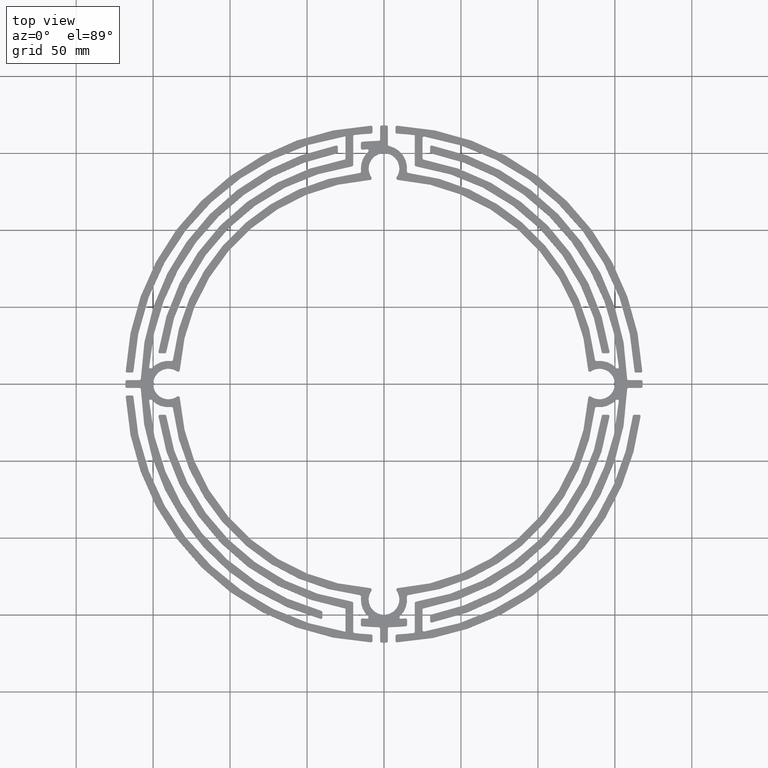
[diagram: clean part render]
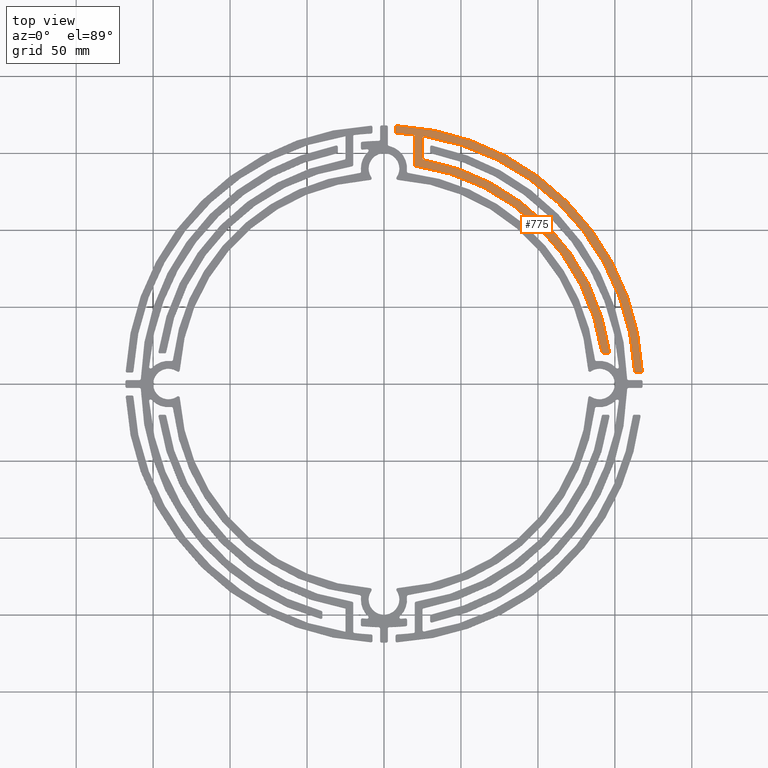
[diagram: same view with one face highlighted and labeled with its STEP entity id]
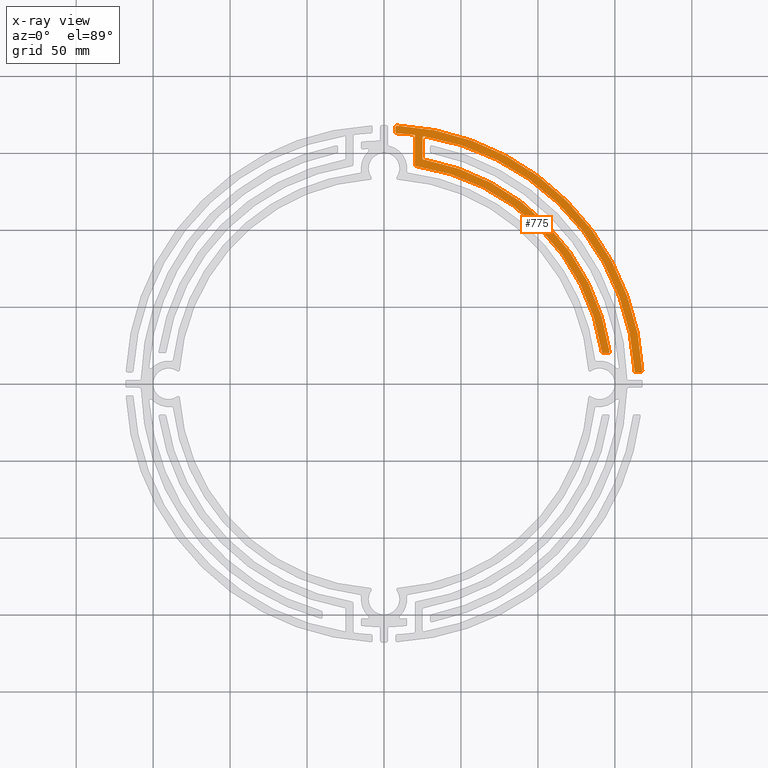
[diagram: x-ray of the same camera — body ghosted, the highlighted face saturated]
A machine part, top view. The second image highlights one B-rep face of the part: STEP entity #775.
The next image is the same camera in x-ray: the body ghosted, the highlighted face saturated — about 0% of this face is hidden behind the body in this view.
In plain terms, the highlighted planar face has unit normal (0, 0, 1).
Its self-contained STEP definition (entity closure, byte-faithful):
#2 = VERTEX_POINT ( 'NONE', #805 ) ;
#37 = VERTEX_POINT ( 'NONE', #840 ) ;
#97 = VERTEX_POINT ( 'NONE', #900 ) ;
#120 = VERTEX_POINT ( 'NONE', #923 ) ;
#129 = VERTEX_POINT ( 'NONE', #932 ) ;
#131 = VERTEX_POINT ( 'NONE', #934 ) ;
#140 = VERTEX_POINT ( 'NONE', #943 ) ;
#154 = VERTEX_POINT ( 'NONE', #957 ) ;
#168 = VERTEX_POINT ( 'NONE', #971 ) ;
#775 = ADVANCED_FACE ( 'NONE', ( #4675 ), #5251, .T. ) ;
#805 = CARTESIAN_POINT ( 'NONE',  ( 167.7822461999832300, 8.550898203592815600, 6.349999999999999600 ) ) ;
#840 = CARTESIAN_POINT ( 'NONE',  ( 26.16049382716048300, 160.8870055744686200, 6.349999999999999600 ) ) ;
#900 = CARTESIAN_POINT ( 'NONE',  ( 8.550898203592815600, 167.7822461999832300, 6.349999999999999600 ) ) ;
#923 = CARTESIAN_POINT ( 'NONE',  ( 19.99999999999998900, 161.7683529000651100, 6.349999999999999600 ) ) ;
#932 = CARTESIAN_POINT ( 'NONE',  ( 7.500000000000000000, 166.7835423535547100, 6.349999999999999600 ) ) ;
#934 = CARTESIAN_POINT ( 'NONE',  ( 8.448170731707319800, 162.7809215211903200, 6.349999999999999600 ) ) ;
#943 = CARTESIAN_POINT ( 'NONE',  ( 7.500000000000000900, 163.7795774814430300, 6.349999999999999600 ) ) ;
#957 = CARTESIAN_POINT ( 'NONE',  ( 19.99999999999998600, 142.4605208470051700, 6.349999999999999600 ) ) ;
#971 = CARTESIAN_POINT ( 'NONE',  ( 20.85416666666665000, 141.4712116744565000, 6.349999999999999600 ) ) ;
#2452 = ORIENTED_EDGE ( 'NONE', *, *, #2970, .T. ) ;
#2453 = ORIENTED_EDGE ( 'NONE', *, *, #3026, .T. ) ;
#2454 = ORIENTED_EDGE ( 'NONE', *, *, #2976, .T. ) ;
#2456 = ORIENTED_EDGE ( 'NONE', *, *, #3055, .T. ) ;
#2458 = ORIENTED_EDGE ( 'NONE', *, *, #2982, .T. ) ;
#2460 = ORIENTED_EDGE ( 'NONE', *, *, #3056, .T. ) ;
#2461 = ORIENTED_EDGE ( 'NONE', *, *, #3078, .T. ) ;
#2463 = ORIENTED_EDGE ( 'NONE', *, *, #3061, .T. ) ;
#2464 = ORIENTED_EDGE ( 'NONE', *, *, #3050, .T. ) ;
#2465 = ORIENTED_EDGE ( 'NONE', *, *, #2975, .T. ) ;
#2466 = ORIENTED_EDGE ( 'NONE', *, *, #3062, .T. ) ;
#2468 = ORIENTED_EDGE ( 'NONE', *, *, #3047, .T. ) ;
#2469 = ORIENTED_EDGE ( 'NONE', *, *, #3031, .T. ) ;
#2470 = ORIENTED_EDGE ( 'NONE', *, *, #3109, .T. ) ;
#2471 = ORIENTED_EDGE ( 'NONE', *, *, #3105, .T. ) ;
#2473 = ORIENTED_EDGE ( 'NONE', *, *, #3096, .T. ) ;
#2474 = ORIENTED_EDGE ( 'NONE', *, *, #3065, .T. ) ;
#2476 = ORIENTED_EDGE ( 'NONE', *, *, #3040, .T. ) ;
#2478 = ORIENTED_EDGE ( 'NONE', *, *, #3038, .T. ) ;
#2937 = EDGE_LOOP ( 'NONE', ( #2456, #2454, #2458, #2460, #2461, #2476, #2452, #2469, #2453, #2465, #2466, #2474, #2464, #2463, #2473, #2468, #2471, #2478, #2470 ) ) ;
#2970 = EDGE_CURVE ( 'NONE', #3543, #3544, #4702, .T. ) ;
#2975 = EDGE_CURVE ( 'NONE', #6810, #37, #4708, .T. ) ;
#2976 = EDGE_CURVE ( 'NONE', #154, #168, #4709, .T. ) ;
#2982 = EDGE_CURVE ( 'NONE', #168, #6849, #4717, .T. ) ;
#3026 = EDGE_CURVE ( 'NONE', #6817, #6810, #6213, .T. ) ;
#3031 = EDGE_CURVE ( 'NONE', #3544, #6817, #6222, .T. ) ;
#3038 = EDGE_CURVE ( 'NONE', #140, #131, #6232, .T. ) ;
#3040 = EDGE_CURVE ( 'NONE', #7170, #3543, #6234, .T. ) ;
#3047 = EDGE_CURVE ( 'NONE', #97, #129, #6241, .T. ) ;
#3050 = EDGE_CURVE ( 'NONE', #6807, #6831, #6243, .T. ) ;
#3055 = EDGE_CURVE ( 'NONE', #120, #154, #6250, .T. ) ;
#3056 = EDGE_CURVE ( 'NONE', #6849, #3547, #6253, .T. ) ;
#3061 = EDGE_CURVE ( 'NONE', #6831, #2, #6259, .T. ) ;
#3062 = EDGE_CURVE ( 'NONE', #37, #6823, #6260, .T. ) ;
#3065 = EDGE_CURVE ( 'NONE', #6823, #6807, #6265, .T. ) ;
#3078 = EDGE_CURVE ( 'NONE', #3547, #7170, #6285, .T. ) ;
#3096 = EDGE_CURVE ( 'NONE', #2, #97, #6310, .T. ) ;
#3105 = EDGE_CURVE ( 'NONE', #129, #140, #6321, .T. ) ;
#3109 = EDGE_CURVE ( 'NONE', #131, #120, #6329, .T. ) ;
#3543 = VERTEX_POINT ( 'NONE', #6519 ) ;
#3544 = VERTEX_POINT ( 'NONE', #6520 ) ;
#3547 = VERTEX_POINT ( 'NONE', #6523 ) ;
#4675 = FACE_OUTER_BOUND ( 'NONE', #2937, .T. ) ;
#4702 = CIRCLE ( 'NONE', #6006, 148.0000000000000000 ) ;
#4708 = CIRCLE ( 'NONE', #6009, 1.000000000000000900 ) ;
#4709 = CIRCLE ( 'NONE', #6010, 1.000000000000000900 ) ;
#4717 = CIRCLE ( 'NONE', #6014, 142.9999999999999700 ) ;
#5251 = PLANE ( 'NONE',  #5995 ) ;
#5252 = CARTESIAN_POINT ( 'NONE',  ( 0.0000000000000000000, 0.0000000000000000000, 6.349999999999999600 ) ) ;
#5253 = DIRECTION ( 'NONE',  ( 0.0000000000000000000, 0.0000000000000000000, 1.000000000000000000 ) ) ;
#5254 = DIRECTION ( 'NONE',  ( 1.000000000000000000, 0.0000000000000000000, -0.0000000000000000000 ) ) ;
#5326 = CARTESIAN_POINT ( 'NONE',  ( 0.0000000000000000000, 0.0000000000000000000, 6.349999999999999600 ) ) ;
#5327 = DIRECTION ( 'NONE',  ( 0.0000000000000000000, 0.0000000000000000000, 1.000000000000000000 ) ) ;
#5328 = DIRECTION ( 'NONE',  ( 1.000000000000000000, 0.0000000000000000000, 0.0000000000000000000 ) ) ;
#5339 = CARTESIAN_POINT ( 'NONE',  ( 25.99999999999998900, 159.8999687304534500, 6.349999999999999600 ) ) ;
#5340 = DIRECTION ( 'NONE',  ( -0.0000000000000000000, -0.0000000000000000000, -1.000000000000000000 ) ) ;
#5341 = DIRECTION ( 'NONE',  ( 1.000000000000000000, 0.0000000000000000000, 0.0000000000000000000 ) ) ;
#5342 = CARTESIAN_POINT ( 'NONE',  ( 20.99999999999998600, 142.4605208470051700, 6.349999999999999600 ) ) ;
#5343 = DIRECTION ( 'NONE',  ( 0.0000000000000000000, 0.0000000000000000000, 1.000000000000000000 ) ) ;
#5344 = DIRECTION ( 'NONE',  ( 1.000000000000000000, 0.0000000000000000000, 0.0000000000000000000 ) ) ;
#5358 = CARTESIAN_POINT ( 'NONE',  ( 0.0000000000000000000, 0.0000000000000000000, 6.349999999999999600 ) ) ;
#5359 = DIRECTION ( 'NONE',  ( -0.0000000000000000000, -0.0000000000000000000, -1.000000000000000000 ) ) ;
#5360 = DIRECTION ( 'NONE',  ( 1.000000000000000000, 0.0000000000000000000, 0.0000000000000000000 ) ) ;
#5474 = CARTESIAN_POINT ( 'NONE',  ( 24.99999999999998600, 161.0714127336070500, 6.349999999999999600 ) ) ;
#5475 = DIRECTION ( 'NONE',  ( -0.0000000000000000000, 1.000000000000000000, -0.0000000000000000000 ) ) ;
#5486 = CARTESIAN_POINT ( 'NONE',  ( 25.99999999999998900, 146.7140075112121200, 6.349999999999999600 ) ) ;
#5487 = DIRECTION ( 'NONE',  ( -0.0000000000000000000, -0.0000000000000000000, -1.000000000000000000 ) ) ;
#5488 = DIRECTION ( 'NONE',  ( 1.000000000000000000, 0.0000000000000000000, 0.0000000000000000000 ) ) ;
#5504 = CARTESIAN_POINT ( 'NONE',  ( 8.500000000000001800, 163.7795774814430300, 6.349999999999999600 ) ) ;
#5505 = DIRECTION ( 'NONE',  ( 0.0000000000000000000, 0.0000000000000000000, 1.000000000000000000 ) ) ;
#5506 = DIRECTION ( 'NONE',  ( 1.000000000000000000, 0.0000000000000000000, 0.0000000000000000000 ) ) ;
#5509 = CARTESIAN_POINT ( 'NONE',  ( 145.4922678357856700, 21.00000000000000000, 6.349999999999999600 ) ) ;
#5510 = DIRECTION ( 'NONE',  ( 0.0000000000000000000, 0.0000000000000000000, 1.000000000000000000 ) ) ;
#5511 = DIRECTION ( 'NONE',  ( 1.000000000000000000, 0.0000000000000000000, 0.0000000000000000000 ) ) ;
#5530 = CARTESIAN_POINT ( 'NONE',  ( 8.500000000000000000, 166.7835423535547100, 6.349999999999999600 ) ) ;
#5531 = DIRECTION ( 'NONE',  ( 0.0000000000000000000, 0.0000000000000000000, 1.000000000000000000 ) ) ;
#5532 = DIRECTION ( 'NONE',  ( 1.000000000000000000, 0.0000000000000000000, 0.0000000000000000000 ) ) ;
#5539 = CARTESIAN_POINT ( 'NONE',  ( 162.8273625653869800, 7.500000000000000000, 6.349999999999999600 ) ) ;
#5540 = DIRECTION ( 'NONE',  ( 1.000000000000000000, 0.0000000000000000000, 0.0000000000000000000 ) ) ;
#5552 = CARTESIAN_POINT ( 'NONE',  ( 19.99999999999999300, 161.7683529000651100, 6.349999999999999600 ) ) ;
#5553 = DIRECTION ( 'NONE',  ( -3.439546717504057800E-016, -1.000000000000000000, 0.0000000000000000000 ) ) ;
#5554 = CARTESIAN_POINT ( 'NONE',  ( 142.4605208470051700, 21.00000000000000000, 6.349999999999999600 ) ) ;
#5555 = DIRECTION ( 'NONE',  ( 0.0000000000000000000, 0.0000000000000000000, 1.000000000000000000 ) ) ;
#5556 = DIRECTION ( 'NONE',  ( 1.000000000000000000, 0.0000000000000000000, 0.0000000000000000000 ) ) ;
#5568 = CARTESIAN_POINT ( 'NONE',  ( 166.7835423535547100, 8.500000000000000000, 6.349999999999999600 ) ) ;
#5569 = DIRECTION ( 'NONE',  ( 0.0000000000000000000, 0.0000000000000000000, 1.000000000000000000 ) ) ;
#5570 = DIRECTION ( 'NONE',  ( 1.000000000000000000, 0.0000000000000000000, 0.0000000000000000000 ) ) ;
#5571 = CARTESIAN_POINT ( 'NONE',  ( 0.0000000000000000000, 0.0000000000000000000, 6.349999999999999600 ) ) ;
#5572 = DIRECTION ( 'NONE',  ( -0.0000000000000000000, -0.0000000000000000000, -1.000000000000000000 ) ) ;
#5573 = DIRECTION ( 'NONE',  ( 1.000000000000000000, 0.0000000000000000000, 0.0000000000000000000 ) ) ;
#5579 = CARTESIAN_POINT ( 'NONE',  ( 163.7795774814430000, 8.500000000000000000, 6.349999999999999600 ) ) ;
#5580 = DIRECTION ( 'NONE',  ( 0.0000000000000000000, 0.0000000000000000000, 1.000000000000000000 ) ) ;
#5581 = DIRECTION ( 'NONE',  ( 1.000000000000000000, 0.0000000000000000000, 0.0000000000000000000 ) ) ;
#5609 = CARTESIAN_POINT ( 'NONE',  ( 141.5944914182751100, 20.00000000000000000, 6.349999999999999600 ) ) ;
#5610 = DIRECTION ( 'NONE',  ( 1.000000000000000000, 0.0000000000000000000, 0.0000000000000000000 ) ) ;
#5657 = CARTESIAN_POINT ( 'NONE',  ( 0.0000000000000000000, 0.0000000000000000000, 6.349999999999999600 ) ) ;
#5658 = DIRECTION ( 'NONE',  ( 0.0000000000000000000, 0.0000000000000000000, 1.000000000000000000 ) ) ;
#5659 = DIRECTION ( 'NONE',  ( 1.000000000000000000, 0.0000000000000000000, 0.0000000000000000000 ) ) ;
#5681 = CARTESIAN_POINT ( 'NONE',  ( 7.500000000000000000, 167.8325057907436000, 6.349999999999999600 ) ) ;
#5682 = DIRECTION ( 'NONE',  ( 1.732940894866419400E-016, -1.000000000000000000, 0.0000000000000000000 ) ) ;
#5691 = CARTESIAN_POINT ( 'NONE',  ( 0.0000000000000000000, 0.0000000000000000000, 6.349999999999999600 ) ) ;
#5692 = DIRECTION ( 'NONE',  ( -0.0000000000000000000, -0.0000000000000000000, -1.000000000000000000 ) ) ;
#5693 = DIRECTION ( 'NONE',  ( 1.000000000000000000, 0.0000000000000000000, 0.0000000000000000000 ) ) ;
#5995 = AXIS2_PLACEMENT_3D ( 'NONE', #5252, #5253, #5254 ) ;
#6006 = AXIS2_PLACEMENT_3D ( 'NONE', #5326, #5327, #5328 ) ;
#6009 = AXIS2_PLACEMENT_3D ( 'NONE', #5339, #5340, #5341 ) ;
#6010 = AXIS2_PLACEMENT_3D ( 'NONE', #5342, #5343, #5344 ) ;
#6014 = AXIS2_PLACEMENT_3D ( 'NONE', #5358, #5359, #5360 ) ;
#6044 = AXIS2_PLACEMENT_3D ( 'NONE', #5486, #5487, #5488 ) ;
#6048 = AXIS2_PLACEMENT_3D ( 'NONE', #5504, #5505, #5506 ) ;
#6049 = AXIS2_PLACEMENT_3D ( 'NONE', #5509, #5510, #5511 ) ;
#6056 = AXIS2_PLACEMENT_3D ( 'NONE', #5530, #5531, #5532 ) ;
#6062 = AXIS2_PLACEMENT_3D ( 'NONE', #5554, #5555, #5556 ) ;
#6066 = AXIS2_PLACEMENT_3D ( 'NONE', #5568, #5569, #5570 ) ;
#6067 = AXIS2_PLACEMENT_3D ( 'NONE', #5571, #5572, #5573 ) ;
#6069 = AXIS2_PLACEMENT_3D ( 'NONE', #5579, #5580, #5581 ) ;
#6085 = AXIS2_PLACEMENT_3D ( 'NONE', #5657, #5658, #5659 ) ;
#6093 = AXIS2_PLACEMENT_3D ( 'NONE', #5691, #5692, #5693 ) ;
#6213 = LINE ( 'NONE', #5474, #6214 ) ;
#6214 = VECTOR ( 'NONE', #5475, 1000.000000000000000 ) ;
#6222 = CIRCLE ( 'NONE', #6044, 1.000000000000000900 ) ;
#6232 = CIRCLE ( 'NONE', #6048, 0.9999999999999991100 ) ;
#6234 = CIRCLE ( 'NONE', #6049, 1.000000000000000900 ) ;
#6241 = CIRCLE ( 'NONE', #6056, 1.000000000000000900 ) ;
#6243 = LINE ( 'NONE', #5539, #6245 ) ;
#6245 = VECTOR ( 'NONE', #5540, 1000.000000000000000 ) ;
#6250 = LINE ( 'NONE', #5552, #6252 ) ;
#6252 = VECTOR ( 'NONE', #5553, 1000.000000000000000 ) ;
#6253 = CIRCLE ( 'NONE', #6062, 1.000000000000000900 ) ;
#6259 = CIRCLE ( 'NONE', #6066, 1.000000000000000900 ) ;
#6260 = CIRCLE ( 'NONE', #6067, 162.9999999999999700 ) ;
#6265 = CIRCLE ( 'NONE', #6069, 1.000000000000000900 ) ;
#6285 = LINE ( 'NONE', #5609, #6287 ) ;
#6287 = VECTOR ( 'NONE', #5610, 1000.000000000000000 ) ;
#6310 = CIRCLE ( 'NONE', #6085, 167.9999999999999400 ) ;
#6321 = LINE ( 'NONE', #5681, #6323 ) ;
#6323 = VECTOR ( 'NONE', #5682, 1000.000000000000000 ) ;
#6329 = CIRCLE ( 'NONE', #6093, 163.0000000000000000 ) ;
#6519 = CARTESIAN_POINT ( 'NONE',  ( 146.4820111543964700, 21.14285714285714200, 6.349999999999999600 ) ) ;
#6520 = CARTESIAN_POINT ( 'NONE',  ( 25.82550335570468600, 145.7293497426804800, 6.349999999999999600 ) ) ;
#6523 = CARTESIAN_POINT ( 'NONE',  ( 142.4605208470051700, 20.00000000000000000, 6.349999999999999600 ) ) ;
#6595 = CARTESIAN_POINT ( 'NONE',  ( 163.7795774814430000, 7.500000000000000000, 6.349999999999999600 ) ) ;
#6598 = CARTESIAN_POINT ( 'NONE',  ( 24.99999999999998600, 159.8999687304534500, 6.349999999999999600 ) ) ;
#6605 = CARTESIAN_POINT ( 'NONE',  ( 24.99999999999998600, 146.7140075112121200, 6.349999999999999600 ) ) ;
#6611 = CARTESIAN_POINT ( 'NONE',  ( 162.7809215211903200, 8.448170731707318000, 6.349999999999999600 ) ) ;
#6619 = CARTESIAN_POINT ( 'NONE',  ( 166.7835423535547100, 7.500000000000000000, 6.349999999999999600 ) ) ;
#6637 = CARTESIAN_POINT ( 'NONE',  ( 141.4712116744565000, 20.85416666666666400, 6.349999999999999600 ) ) ;
#6727 = CARTESIAN_POINT ( 'NONE',  ( 145.4922678357856700, 20.00000000000000000, 6.349999999999999600 ) ) ;
#6807 = VERTEX_POINT ( 'NONE', #6595 ) ;
#6810 = VERTEX_POINT ( 'NONE', #6598 ) ;
#6817 = VERTEX_POINT ( 'NONE', #6605 ) ;
#6823 = VERTEX_POINT ( 'NONE', #6611 ) ;
#6831 = VERTEX_POINT ( 'NONE', #6619 ) ;
#6849 = VERTEX_POINT ( 'NONE', #6637 ) ;
#7170 = VERTEX_POINT ( 'NONE', #6727 ) ;